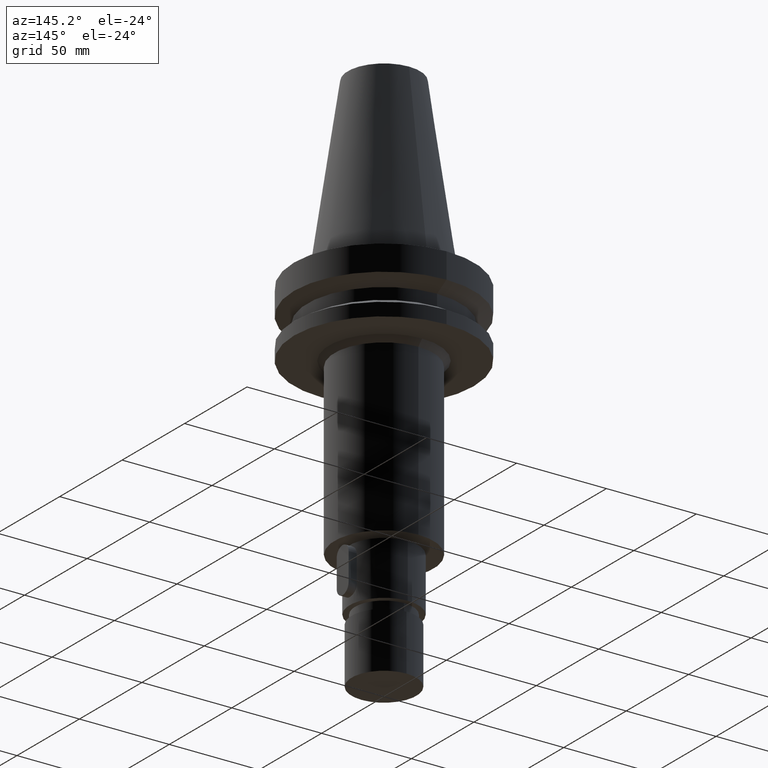
[diagram: clean part render]
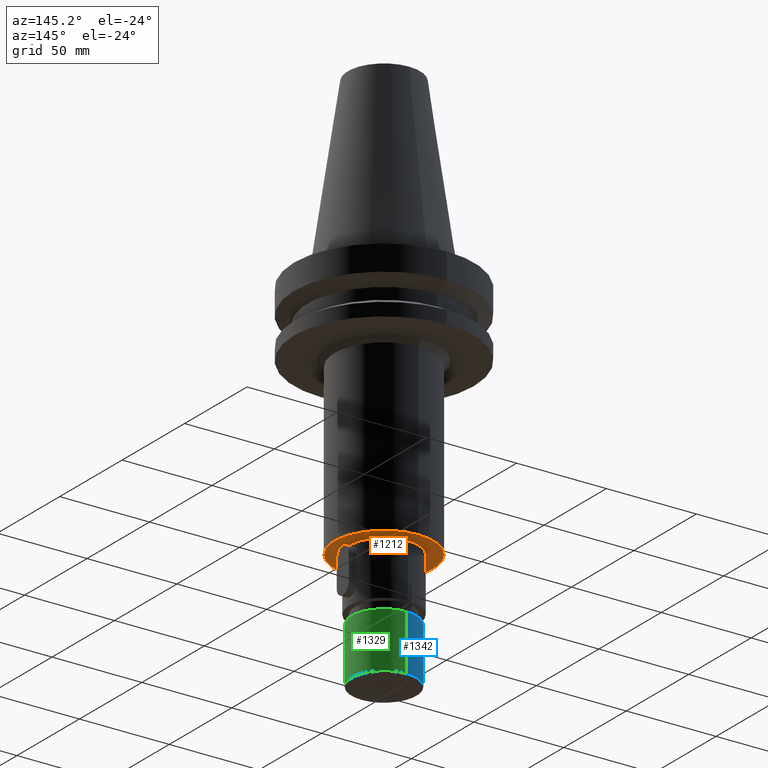
[diagram: same view with three faces highlighted in distinct colors, each labeled with its STEP entity id]
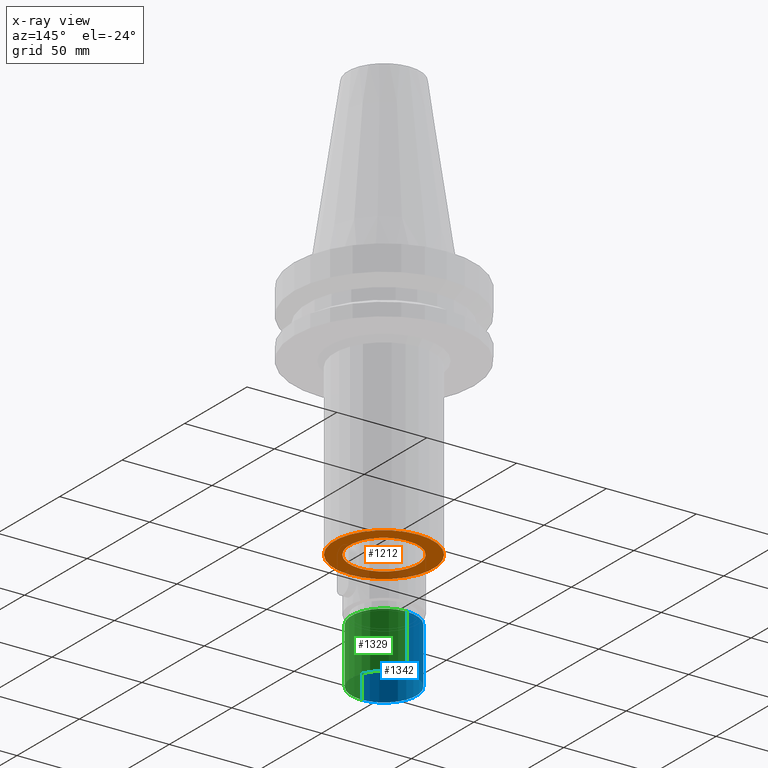
[diagram: x-ray of the same camera — body ghosted, the three highlighted faces saturated]
A machine part, auxiliary view with three faces highlighted in distinct colors.
The next image is the same camera in x-ray (body ghosted, the three faces saturated) — at least one of them is partly hidden behind the body in this view.
Their STEP definitions:

[orange] entity #1212 — the highlighted planar face has unit normal (0, 0, -1).
#412=CARTESIAN_POINT('',(0.E0,2.656748766070E-14,-1.35E2));
#413=DIRECTION('',(0.E0,0.E0,1.E0));
#414=DIRECTION('',(0.E0,1.E0,0.E0));
#415=AXIS2_PLACEMENT_3D('',#412,#413,#414);
#420=CARTESIAN_POINT('',(0.E0,2.656748766070E-14,-1.35E2));
#421=DIRECTION('',(0.E0,0.E0,1.E0));
#422=DIRECTION('',(0.E0,-1.E0,0.E0));
#423=AXIS2_PLACEMENT_3D('',#420,#421,#422);
#428=CARTESIAN_POINT('',(0.E0,2.656748766070E-14,-1.35E2));
#429=DIRECTION('',(0.E0,0.E0,-1.E0));
#430=DIRECTION('',(0.E0,1.E0,0.E0));
#431=AXIS2_PLACEMENT_3D('',#428,#429,#430);
#436=CARTESIAN_POINT('',(0.E0,2.656748766070E-14,-1.35E2));
#437=DIRECTION('',(0.E0,0.E0,-1.E0));
#438=DIRECTION('',(0.E0,-1.E0,0.E0));
#439=AXIS2_PLACEMENT_3D('',#436,#437,#438);
#766=CARTESIAN_POINT('',(0.E0,2.75E1,-1.35E2));
#767=VERTEX_POINT('',#766);
#768=CARTESIAN_POINT('',(0.E0,-2.75E1,-1.35E2));
#769=VERTEX_POINT('',#768);
#770=CARTESIAN_POINT('',(0.E0,1.905E1,-1.35E2));
#771=CARTESIAN_POINT('',(0.E0,-1.905E1,-1.35E2));
#772=VERTEX_POINT('',#770);
#773=VERTEX_POINT('',#771);
#1197=CARTESIAN_POINT('',(0.E0,0.E0,-1.35E2));
#1198=DIRECTION('',(0.E0,0.E0,-1.E0));
#1199=DIRECTION('',(0.E0,-1.E0,0.E0));
#1200=AXIS2_PLACEMENT_3D('',#1197,#1198,#1199);
#1201=PLANE('',#1200);
#1202=ORIENTED_EDGE('',*,*,#1179,.T.);
#1203=ORIENTED_EDGE('',*,*,#1190,.T.);
#1204=EDGE_LOOP('',(#1202,#1203));
#1205=FACE_OUTER_BOUND('',#1204,.F.);
#1207=ORIENTED_EDGE('',*,*,#1206,.T.);
#1209=ORIENTED_EDGE('',*,*,#1208,.T.);
#1210=EDGE_LOOP('',(#1207,#1209));
#1211=FACE_BOUND('',#1210,.F.);
#416=CIRCLE('',#415,2.75E1);
#424=CIRCLE('',#423,2.75E1);
#432=CIRCLE('',#431,1.905E1);
#440=CIRCLE('',#439,1.905E1);
#1179=EDGE_CURVE('',#767,#769,#416,.T.);
#1190=EDGE_CURVE('',#769,#767,#424,.T.);
#1206=EDGE_CURVE('',#772,#773,#432,.T.);
#1208=EDGE_CURVE('',#773,#772,#440,.T.);
#1212=ADVANCED_FACE('',(#1205,#1211),#1201,.T.);

[blue] entity #1342 — the highlighted cylindrical surface (partial cylindrical patch) has radius 18 mm, axis along (0, 0, -1).
#526=CARTESIAN_POINT('',(0.E0,2.656748766070E-14,-1.7E2));
#527=DIRECTION('',(0.E0,0.E0,-1.E0));
#528=DIRECTION('',(0.E0,-1.E0,0.E0));
#529=AXIS2_PLACEMENT_3D('',#526,#527,#528);
#550=DIRECTION('',(0.E0,0.E0,-1.E0));
#551=VECTOR('',#550,3.1E1);
#552=CARTESIAN_POINT('',(0.E0,1.8E1,-1.7E2));
#553=LINE('',#552,#551);
#557=DIRECTION('',(0.E0,0.E0,-1.E0));
#558=VECTOR('',#557,3.1E1);
#559=CARTESIAN_POINT('',(0.E0,-1.8E1,-1.7E2));
#560=LINE('',#559,#558);
#564=CARTESIAN_POINT('',(0.E0,2.656748766070E-14,-2.01E2));
#565=DIRECTION('',(0.E0,0.E0,1.E0));
#566=DIRECTION('',(0.E0,1.E0,0.E0));
#567=AXIS2_PLACEMENT_3D('',#564,#565,#566);
#793=CARTESIAN_POINT('',(0.E0,1.8E1,-1.7E2));
#794=CARTESIAN_POINT('',(0.E0,-1.8E1,-1.7E2));
#795=VERTEX_POINT('',#793);
#796=VERTEX_POINT('',#794);
#797=CARTESIAN_POINT('',(0.E0,1.8E1,-2.01E2));
#798=VERTEX_POINT('',#797);
#799=CARTESIAN_POINT('',(0.E0,-1.8E1,-2.01E2));
#800=VERTEX_POINT('',#799);
#1330=CARTESIAN_POINT('',(0.E0,2.656748766070E-14,1.1694E2));
#1331=DIRECTION('',(0.E0,0.E0,-1.E0));
#1332=DIRECTION('',(0.E0,-1.E0,0.E0));
#1333=AXIS2_PLACEMENT_3D('',#1330,#1331,#1332);
#1334=CYLINDRICAL_SURFACE('',#1333,1.8E1);
#1335=ORIENTED_EDGE('',*,*,#1320,.F.);
#1336=ORIENTED_EDGE('',*,*,#1306,.F.);
#1337=ORIENTED_EDGE('',*,*,#1324,.T.);
#1339=ORIENTED_EDGE('',*,*,#1338,.F.);
#1340=EDGE_LOOP('',(#1335,#1336,#1337,#1339));
#1341=FACE_OUTER_BOUND('',#1340,.F.);
#530=CIRCLE('',#529,1.8E1);
#568=CIRCLE('',#567,1.8E1);
#1306=EDGE_CURVE('',#796,#795,#530,.T.);
#1320=EDGE_CURVE('',#795,#798,#553,.T.);
#1324=EDGE_CURVE('',#796,#800,#560,.T.);
#1338=EDGE_CURVE('',#798,#800,#568,.T.);
#1342=ADVANCED_FACE('',(#1341),#1334,.T.);

[green] entity #1329 — the highlighted cylindrical surface (partial cylindrical patch) has radius 18 mm, axis along (0, 0, -1).
#518=CARTESIAN_POINT('',(0.E0,2.656748766070E-14,-1.7E2));
#519=DIRECTION('',(0.E0,0.E0,-1.E0));
#520=DIRECTION('',(0.E0,1.E0,0.E0));
#521=AXIS2_PLACEMENT_3D('',#518,#519,#520);
#550=DIRECTION('',(0.E0,0.E0,-1.E0));
#551=VECTOR('',#550,3.1E1);
#552=CARTESIAN_POINT('',(0.E0,1.8E1,-1.7E2));
#553=LINE('',#552,#551);
#557=DIRECTION('',(0.E0,0.E0,-1.E0));
#558=VECTOR('',#557,3.1E1);
#559=CARTESIAN_POINT('',(0.E0,-1.8E1,-1.7E2));
#560=LINE('',#559,#558);
#572=CARTESIAN_POINT('',(0.E0,2.656748766070E-14,-2.01E2));
#573=DIRECTION('',(0.E0,0.E0,1.E0));
#574=DIRECTION('',(0.E0,-1.E0,0.E0));
#575=AXIS2_PLACEMENT_3D('',#572,#573,#574);
#793=CARTESIAN_POINT('',(0.E0,1.8E1,-1.7E2));
#794=CARTESIAN_POINT('',(0.E0,-1.8E1,-1.7E2));
#795=VERTEX_POINT('',#793);
#796=VERTEX_POINT('',#794);
#797=CARTESIAN_POINT('',(0.E0,1.8E1,-2.01E2));
#798=VERTEX_POINT('',#797);
#799=CARTESIAN_POINT('',(0.E0,-1.8E1,-2.01E2));
#800=VERTEX_POINT('',#799);
#1315=CARTESIAN_POINT('',(0.E0,2.656748766070E-14,1.1694E2));
#1316=DIRECTION('',(0.E0,0.E0,-1.E0));
#1317=DIRECTION('',(0.E0,-1.E0,0.E0));
#1318=AXIS2_PLACEMENT_3D('',#1315,#1316,#1317);
#1319=CYLINDRICAL_SURFACE('',#1318,1.8E1);
#1321=ORIENTED_EDGE('',*,*,#1320,.T.);
#1323=ORIENTED_EDGE('',*,*,#1322,.F.);
#1325=ORIENTED_EDGE('',*,*,#1324,.F.);
#1326=ORIENTED_EDGE('',*,*,#1304,.F.);
#1327=EDGE_LOOP('',(#1321,#1323,#1325,#1326));
#1328=FACE_OUTER_BOUND('',#1327,.F.);
#522=CIRCLE('',#521,1.8E1);
#576=CIRCLE('',#575,1.8E1);
#1304=EDGE_CURVE('',#795,#796,#522,.T.);
#1320=EDGE_CURVE('',#795,#798,#553,.T.);
#1322=EDGE_CURVE('',#800,#798,#576,.T.);
#1324=EDGE_CURVE('',#796,#800,#560,.T.);
#1329=ADVANCED_FACE('',(#1328),#1319,.T.);